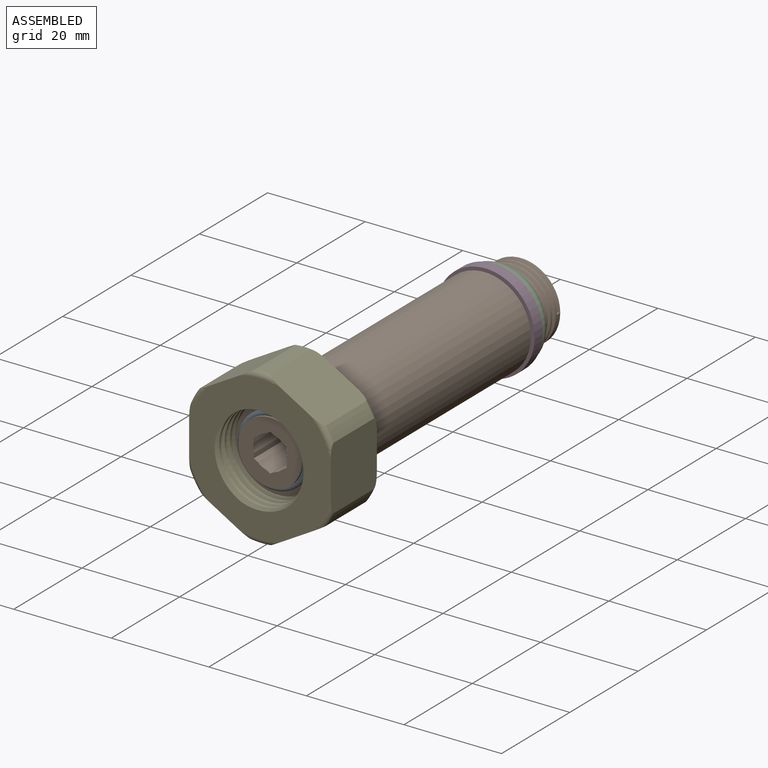
[diagram: assembled view]
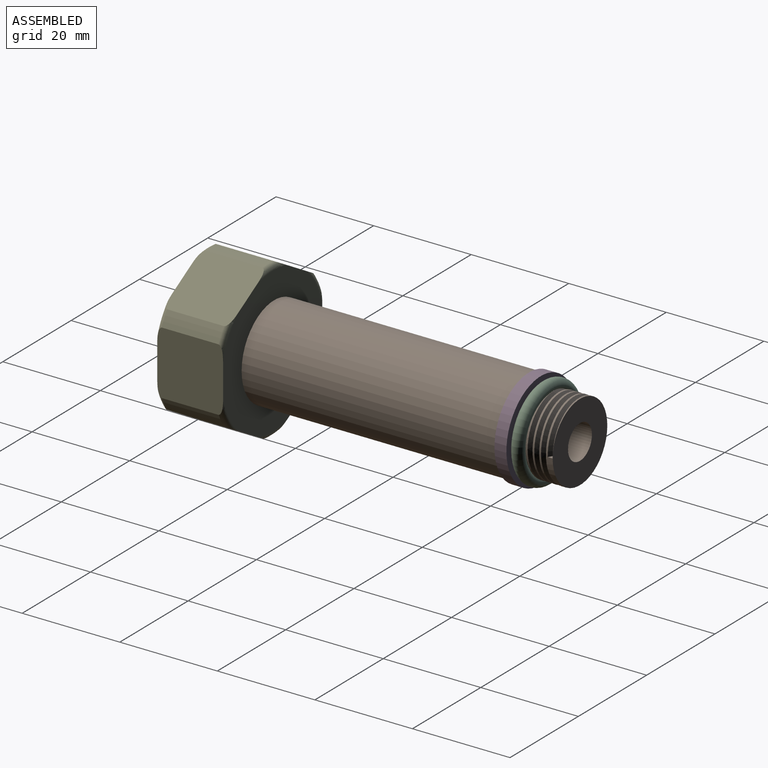
[diagram: assembled view, second angle]
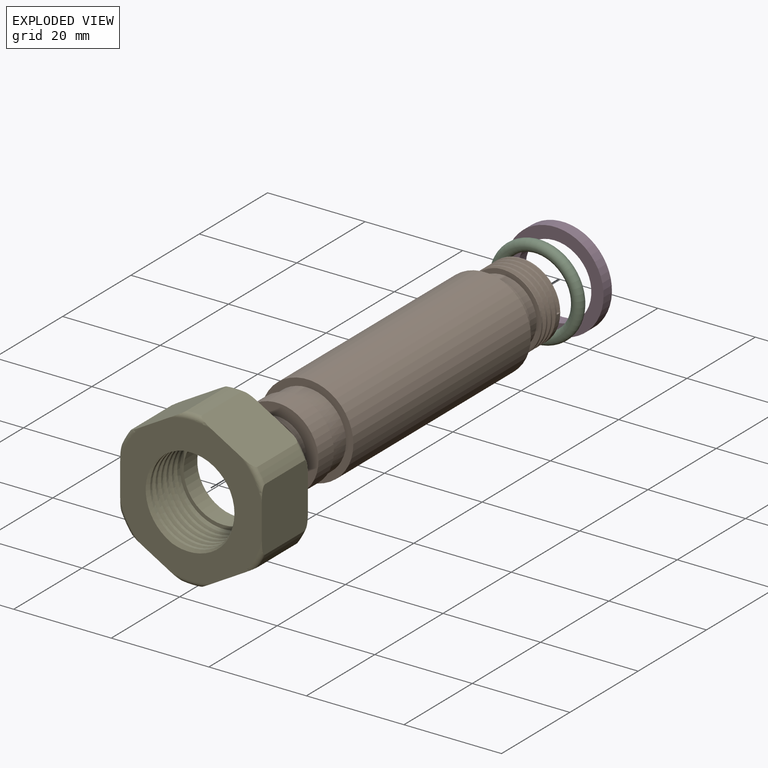
[diagram: exploded view]
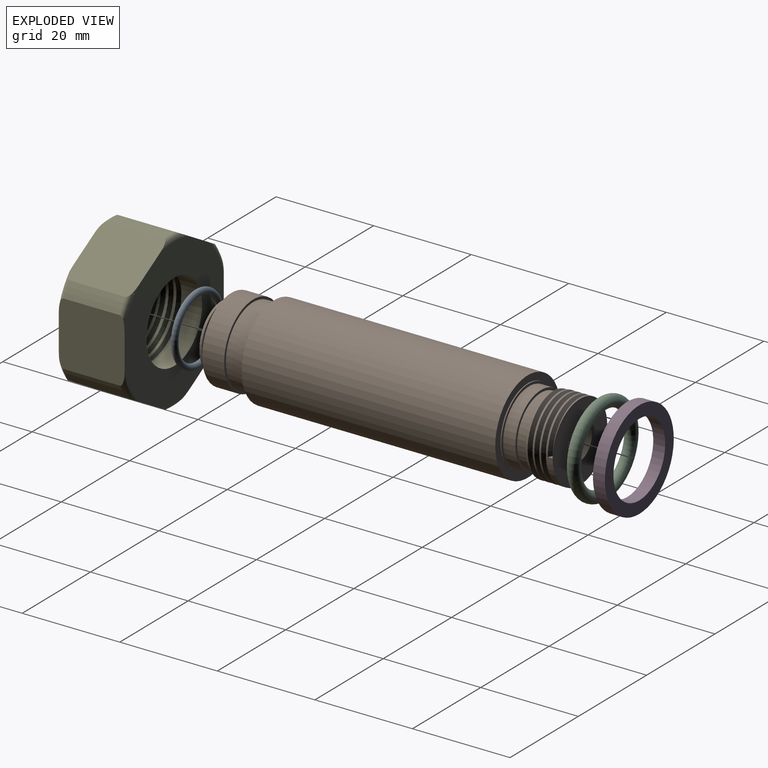
[diagram: exploded view, second angle]
ASSEMBLY  parts=5 mates=4
PART A: 1 faces, bbox 15.9x1.3x15.9 mm
  f0: torus R=6.69mm, axis (0,-1,0), area 171.7mm2
PART B: 41 faces, bbox 19.6x74.1x19.6 mm
  f0: cylinder r=8mm len=16mm, axis (0,-1,0), area 215.2mm2, adj f7,f40
  f1: cylinder r=3.5mm len=73.5mm, axis (0,1,0), area 1516.3mm2, adj f2,f15,f20,f21,f22,f23,f24,f25
  f2: plane 13x13mm, normal (0,-1,0), area 92.5mm2, adj f1,f3,f20,f21,f23,f24,f26,f27
  f3: cylinder r=6.5mm len=13mm, axis (0,1,0), area 20.4mm2, adj f2,f4
  f4: plane 13x13mm, normal (0,1,0), area 19.6mm2, adj f3,f5
  f5: cylinder r=6mm len=12mm, axis (0,-1,0), area 56.5mm2, adj f4,f8
  f6: cylinder r=8.5mm len=17mm, axis (0,-1,0), area 240.3mm2, adj f7,f8
  f7: plane 17x17mm, normal (0,1,0), area 25.9mm2, adj f0,f6
  f8: plane 17x17mm, normal (0,-1,0), area 113.9mm2, adj f5,f6
  f9: cylinder r=8mm len=16mm, axis (0,-1,0), area 11mm2, adj f10,f39
  f10: plane 16x16mm, normal (0,1,0), area 24.3mm2, adj f9,f11
  f11: cylinder r=7.5mm len=15mm, axis (0,-1,0), area 117.8mm2, adj f10,f12
  f12: plane 15x15mm, normal (0,1,0), area 22.8mm2, adj f11,f13
  f13: cylinder r=7mm len=14mm, axis (0,-1,0), area 110mm2, adj f12,f16
  f14: cylinder r=8mm len=16mm, axis (0,-1,0), area 91.5mm2, adj f15,f16,f17,f18,f19
  f15: plane 16x16mm, normal (0,1,0), area 162.6mm2, adj f1,f14
  f16: plane 16.05x16mm, normal (0,-1,0), area 31.8mm2, adj f13,f14,f17,f18
  f17: bspline ~18.48x16mm, area 181.9mm2, adj f14,f16,f18,f19
  f18: bspline ~18.48x16mm, area 164.2mm2, adj f14,f16,f17,f19
  f19: plane 1x0.87mm, normal (0,0,1), area 0.4mm2, adj f14,f17,f18
  f20: plane 10x0.95mm, normal (-1,0,0), area 9.5mm2, adj f1,f2,f21,f22
  f21: plane 10x0.83mm, normal (-0.5,0,-0.87), area 9.5mm2, adj f1,f2,f20,f22
  f22: plane 1.43x0.83mm, normal (0,-1,0), area 0.3mm2, adj f1,f20,f21
  f23: plane 10x0.83mm, normal (-0.5,0,0.87), area 9.5mm2, adj f1,f2,f24,f25
  f24: plane 10x0.95mm, normal (-1,0,0), area 9.5mm2, adj f1,f2,f23,f25
  f25: plane 1.43x0.83mm, normal (0,-1,0), area 0.3mm2, adj f1,f23,f24
  f26: plane 10x0.83mm, normal (0.5,0,0.87), area 9.5mm2, adj f1,f2,f27,f28
  f27: plane 10x0.83mm, normal (-0.5,0,0.87), area 9.5mm2, adj f1,f2,f26,f28
  f28: plane 1.65x0.48mm, normal (0,-1,0), area 0.3mm2, adj f1,f26,f27
  f29: plane 10x0.95mm, normal (1,0,0), area 9.5mm2, adj f1,f2,f30,f31
  f30: plane 10x0.83mm, normal (0.5,0,0.87), area 9.5mm2, adj f1,f2,f29,f31
  f31: plane 1.43x0.83mm, normal (0,-1,0), area 0.3mm2, adj f1,f29,f30
  f32: plane 10x0.83mm, normal (0.5,0,-0.87), area 9.5mm2, adj f1,f2,f33,f34
  f33: plane 10x0.95mm, normal (1,0,0), area 9.5mm2, adj f1,f2,f32,f34
  f34: plane 1.43x0.83mm, normal (0,-1,0), area 0.3mm2, adj f1,f32,f33
  f35: plane 10x0.83mm, normal (0.5,0,-0.87), area 9.5mm2, adj f1,f2,f36,f37
  f36: plane 10x0.83mm, normal (-0.5,0,-0.87), area 9.5mm2, adj f1,f2,f35,f37
  f37: plane 1.65x0.48mm, normal (0,-1,0), area 0.3mm2, adj f1,f35,f36
  f38: cylinder r=9.5mm len=52mm, axis (0,-1,0), area 3103.9mm2, adj f39,f40
  f39: plane 19x19mm, normal (0,1,0), area 82.5mm2, adj f9,f38
  f40: plane 19x19mm, normal (0,-1,0), area 82.5mm2, adj f0,f38
PART C: 1 faces, bbox 20.8x2.4x20.8 mm
  f0: torus R=8.42mm, axis (0,-1,0), area 398.7mm2
PART D: 4 faces, bbox 20.2x2.5x20.2 mm
  f0: cylinder r=10.08mm len=20.16mm, axis (0,-1,0), area 155.2mm2, adj f1,f3
  f1: plane 20.16x20.16mm, normal (0,-1,0), area 138.7mm2, adj f0,f2
  f2: cylinder r=7.58mm len=15.16mm, axis (0,-1,0), area 116.7mm2, adj f1,f3
  f3: plane 20.16x20.16mm, normal (0,1,0), area 138.7mm2, adj f0,f2
PART E: 32 faces, bbox 33.5x14.2x34.5 mm
  f0: plane 29.83x29.02mm, normal (0,-1,0), area 422.2mm2, adj f6,f11,f12,f13,f14,f15,f16,f22
  f1: cylinder r=15.92mm len=11.5mm, axis (0,-1,0), area 36.8mm2, adj f11,f16,f20,f25
  f2: cylinder r=15.92mm len=11.5mm, axis (0,-1,0), area 36.8mm2, adj f15,f16,f21,f26
  f3: cylinder r=15.92mm len=11.5mm, axis (0,-1,0), area 36.8mm2, adj f14,f15,f27,f28
  f4: cylinder r=15.92mm len=11.5mm, axis (0,-1,0), area 36.8mm2, adj f13,f14,f17,f22
  f5: cylinder r=15.92mm len=11.5mm, axis (0,-1,0), area 36.8mm2, adj f12,f13,f18,f23
  f6: cylinder r=8.92mm len=17.83mm, axis (0,-1,0), area 217.2mm2, adj f0,f7,f29,f30,f31
  f7: plane 17.83x17.83mm, normal (0,-1,0), area 40.2mm2, adj f6,f8
  f8: cylinder r=8.17mm len=16.33mm, axis (0,-1,0), area 205.2mm2, adj f7,f9
  f9: plane 29.83x29.02mm, normal (0,1,0), area 478.3mm2, adj f8,f11,f12,f13,f14,f15,f16,f17
  f10: cylinder r=15.92mm len=11.5mm, axis (0,-1,0), area 36.8mm2, adj f11,f12,f19,f24
  f11: plane 13.5x11.32mm, normal (-0.5,0,0.87), area 174.2mm2, adj f0,f1,f9,f10,f19,f20,f24,f25
  f12: plane 13.5x13.07mm, normal (-1,0,0), area 174.2mm2, adj f0,f5,f9,f10,f18,f19,f23,f24
  f13: plane 13.5x11.32mm, normal (-0.5,0,-0.87), area 174.2mm2, adj f0,f4,f5,f9,f17,f18,f22,f23
  f14: plane 13.5x11.32mm, normal (0.5,0,-0.87), area 174.2mm2, adj f0,f3,f4,f9,f17,f22,f27,f28
  f15: plane 13.5x13.07mm, normal (1,0,0), area 174.2mm2, adj f0,f2,f3,f9,f21,f26,f27,f28
  f16: plane 13.5x11.32mm, normal (0.5,0,0.87), area 174.2mm2, adj f0,f1,f2,f9,f20,f21,f25,f26
  f17: torus R=14.92mm, axis (0,-1,0), area 7.8mm2, adj f4,f9,f13,f14
  f18: torus R=14.92mm, axis (0,-1,0), area 7.8mm2, adj f5,f9,f12,f13
  f19: torus R=14.92mm, axis (0,-1,0), area 7.8mm2, adj f9,f10,f11,f12
  f20: torus R=14.92mm, axis (0,-1,0), area 7.8mm2, adj f1,f9,f11,f16
  f21: torus R=14.92mm, axis (0,-1,0), area 7.8mm2, adj f2,f9,f15,f16
  f22: torus R=14.92mm, axis (0,1,0), area 7.8mm2, adj f0,f4,f13,f14
  f23: torus R=14.92mm, axis (0,1,0), area 7.8mm2, adj f0,f5,f12,f13
  f24: torus R=14.92mm, axis (0,1,0), area 7.8mm2, adj f0,f10,f11,f12
  f25: torus R=14.92mm, axis (0,1,0), area 7.8mm2, adj f0,f1,f11,f16
  f26: torus R=14.92mm, axis (0,1,0), area 7.8mm2, adj f0,f2,f15,f16
  f27: torus R=14.92mm, axis (0,-1,0), area 7.8mm2, adj f3,f9,f14,f15
  f28: torus R=14.92mm, axis (0,1,0), area 7.8mm2, adj f0,f3,f14,f15
  f29: bspline ~22.59x19.56mm, area 343mm2, adj f0,f6,f30,f31
  f30: bspline ~22.59x19.56mm, area 324.8mm2, adj f0,f6,f29,f31
  f31: plane 1x0.87mm, normal (0,0,1), area 0.4mm2, adj f6,f29,f30
PLACE A t=(-19.2,-54.11,21.52)mm
PLACE B t=(-19.2,-54.11,21.52)mm
PLACE C t=(-19.2,-49.16,21.52)mm
PLACE D t=(-19.2,-49.13,21.52)mm
PLACE E t=(-19.2,-54.39,21.52)mm
MATE revolute D.f0 <-> B.f0  axis (0,-1,0) through (-19.2,9.64,21.52)mm
MATE fastened C.f0 <-> B.f0  axis (0,-1,0) through (-19.2,12.14,21.52)mm
MATE revolute E.f1 <-> B.f0  axis (0,-1,0) through (-19.2,-48.11,21.52)mm
MATE fastened A.f0 <-> B.f0  axis (0,-1,0) through (-19.2,-53.36,21.52)mm
